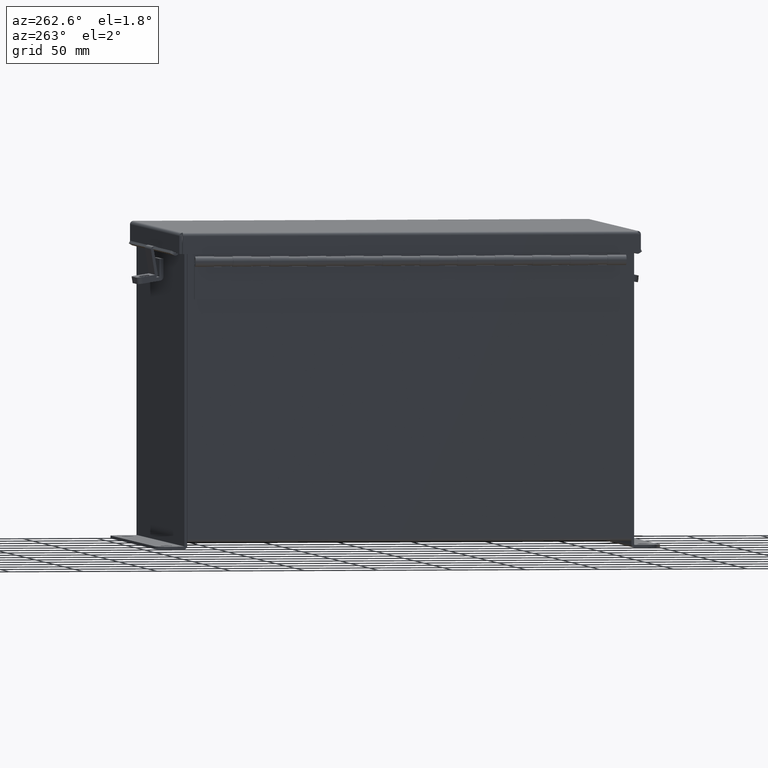
[diagram: clean part render]
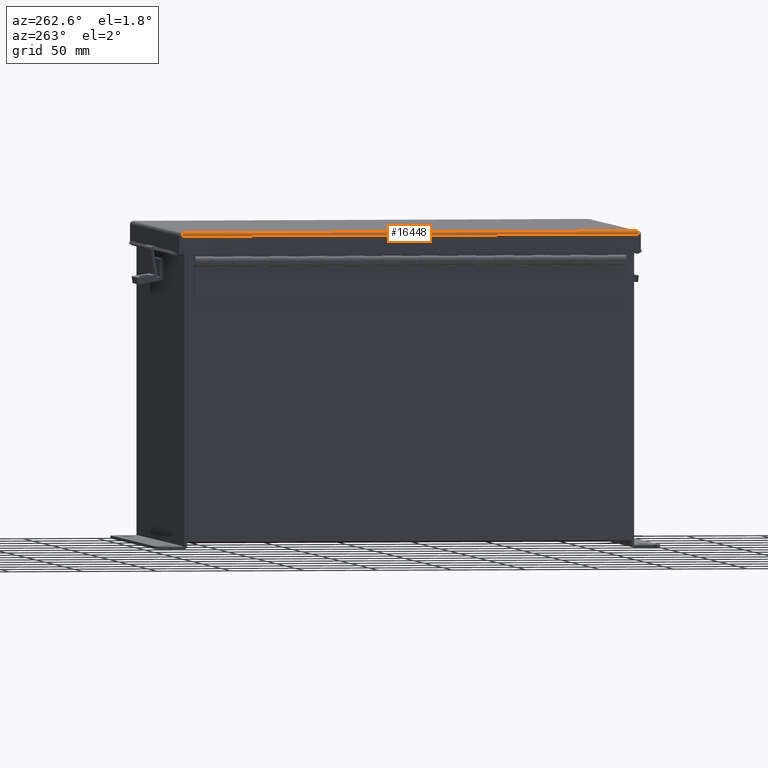
[diagram: same view with one face highlighted and labeled with its STEP entity id]
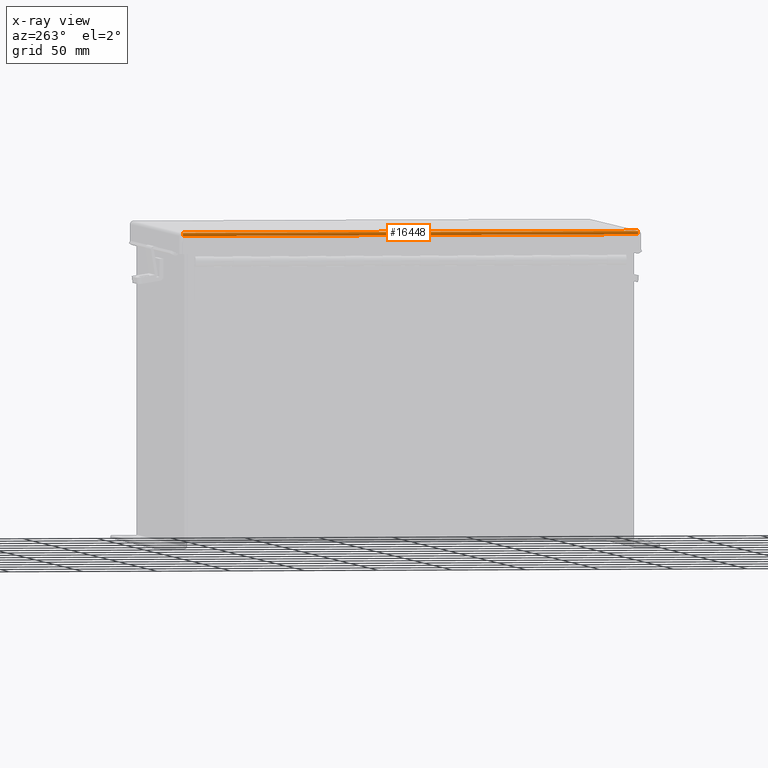
[diagram: x-ray of the same camera — body ghosted, the highlighted face saturated]
A machine part, auxiliary view. The second image highlights one B-rep face of the part: STEP entity #16448.
The next image is the same camera in x-ray: the body ghosted, the highlighted face saturated — about 0% of this face is hidden behind the body in this view.
In plain terms, the highlighted cylindrical surface (edge-blend (fillet) strip) has radius 2.2276 mm, axis along (0, 1, 0).
Its self-contained STEP definition (entity closure, byte-faithful):
#115 = CARTESIAN_POINT ( 'NONE',  ( 5.156250000000000900, 6.073984854505792600, 0.001520096845007091700 ) ) ;
#478 = ORIENTED_EDGE ( 'NONE', *, *, #7489, .F. ) ;
#629 = CARTESIAN_POINT ( 'NONE',  ( 5.156250000000000900, 6.074478932188137400, 0.01299999999999978100 ) ) ;
#1414 = AXIS2_PLACEMENT_3D ( 'NONE', #12725, #14011, #1733 ) ;
#1512 = CARTESIAN_POINT ( 'NONE',  ( 5.156250000000000900, 6.074478932188137400, 0.01299999999999978100 ) ) ;
#1600 = CARTESIAN_POINT ( 'NONE',  ( 5.068550000000001000, 6.074478932188137400, -0.07469999999999993300 ) ) ;
#1733 = DIRECTION ( 'NONE',  ( 1.000000000000000000, 0.0000000000000000000, -4.477801015840783100E-015 ) ) ;
#2058 = EDGE_CURVE ( 'NONE', #16211, #16643, #3827, .T. ) ;
#2518 = CARTESIAN_POINT ( 'NONE',  ( 5.068550000000001000, 6.068550000000001000, -0.07469999999999993300 ) ) ;
#2894 = CARTESIAN_POINT ( 'NONE',  ( 5.138680782078322000, 6.072008543776414400, -0.04089574734180010500 ) ) ;
#3136 = CARTESIAN_POINT ( 'NONE',  ( 5.156250000000000900, -6.156249999999998200, 0.01299999999999978100 ) ) ;
#3146 = CARTESIAN_POINT ( 'NONE',  ( 5.112717384578526300, -6.070526310729377400, -0.06363106625866835100 ) ) ;
#3827 = LINE ( 'NONE', #1600, #17515 ) ;
#4268 = CARTESIAN_POINT ( 'NONE',  ( 5.112717384578529900, 6.070526310729380100, -0.06363106625866837800 ) ) ;
#4521 = DIRECTION ( 'NONE',  ( -0.0000000000000000000, -1.000000000000000000, -0.0000000000000000000 ) ) ;
#4526 = CARTESIAN_POINT ( 'NONE',  ( 5.138680782078323800, -6.072008543776409100, -0.04089574734180011200 ) ) ;
#5640 = CARTESIAN_POINT ( 'NONE',  ( 5.080029903154994000, 6.069044077682346700, -0.07469999999999994700 ) ) ;
#5875 = CARTESIAN_POINT ( 'NONE',  ( 5.153967403743813200, -6.073490776823447800, -0.009955289458309054700 ) ) ;
#5988 = B_SPLINE_CURVE_WITH_KNOTS ( 'NONE', 3,
 ( #7215, #15378, #11338, #3146, #12705, #4526, #14055, #5875, #15427, #7285 ),
 .UNSPECIFIED., .F., .F.,
 ( 4, 2, 2, 2, 4 ),
 ( 0.0000000000000000000, 0.2500000000000000000, 0.5000000000000000000, 0.7500000000000000000, 1.000000000000000000 ),
 .UNSPECIFIED. ) ;
#6176 = VECTOR ( 'NONE', #4521, 39.37007874015748100 ) ;
#6196 = B_SPLINE_CURVE_WITH_KNOTS ( 'NONE', 3,
 ( #1512, #115, #8339, #11089, #2894, #12449, #4268, #13827, #5640, #15184 ),
 .UNSPECIFIED., .F., .F.,
 ( 4, 2, 2, 2, 4 ),
 ( 0.0000000000000000000, 0.2500000000000000000, 0.5000000000000000000, 0.7500000000000000000, 1.000000000000000000 ),
 .UNSPECIFIED. ) ;
#7215 = CARTESIAN_POINT ( 'NONE',  ( 5.068550000000001000, -6.068549999999999200, -0.07469999999999993300 ) ) ;
#7285 = CARTESIAN_POINT ( 'NONE',  ( 5.156250000000000900, -6.074478932188134700, 0.01299999999999977400 ) ) ;
#7400 = EDGE_CURVE ( 'NONE', #13811, #16211, #6196, .T. ) ;
#7489 = EDGE_CURVE ( 'NONE', #16643, #16833, #5988, .T. ) ;
#8339 = CARTESIAN_POINT ( 'NONE',  ( 5.153967403743813200, 6.073490776823447800, -0.009955289458309056500 ) ) ;
#9683 = ORIENTED_EDGE ( 'NONE', *, *, #2058, .F. ) ;
#10237 = LINE ( 'NONE', #3136, #6176 ) ;
#10348 = ORIENTED_EDGE ( 'NONE', *, *, #12529, .T. ) ;
#10762 = ORIENTED_EDGE ( 'NONE', *, *, #7400, .F. ) ;
#11089 = CARTESIAN_POINT ( 'NONE',  ( 5.145181066258667000, 6.072502621458759200, -0.03116738457852799900 ) ) ;
#11338 = CARTESIAN_POINT ( 'NONE',  ( 5.091505289458312200, -6.069538155364686100, -0.07241740374381121200 ) ) ;
#12449 = CARTESIAN_POINT ( 'NONE',  ( 5.122445747341801700, 6.071020388411723100, -0.05713078207832041800 ) ) ;
#12529 = EDGE_CURVE ( 'NONE', #13811, #16833, #10237, .T. ) ;
#12705 = CARTESIAN_POINT ( 'NONE',  ( 5.122445747341800800, -6.071020388411719500, -0.05713078207832041800 ) ) ;
#12725 = CARTESIAN_POINT ( 'NONE',  ( 5.068550000000001000, 6.074478932188137400, 0.01300000000000016400 ) ) ;
#13368 = CARTESIAN_POINT ( 'NONE',  ( 5.156250000000000900, -6.074478932188134700, 0.01299999999999977400 ) ) ;
#13811 = VERTEX_POINT ( 'NONE', #629 ) ;
#13827 = CARTESIAN_POINT ( 'NONE',  ( 5.091505289458310400, 6.069538155364692300, -0.07241740374381121200 ) ) ;
#13870 = DIRECTION ( 'NONE',  ( -0.0000000000000000000, -1.000000000000000000, -0.0000000000000000000 ) ) ;
#14011 = DIRECTION ( 'NONE',  ( 0.0000000000000000000, 1.000000000000000000, 0.0000000000000000000 ) ) ;
#14055 = CARTESIAN_POINT ( 'NONE',  ( 5.145181066258668800, -6.072502621458755600, -0.03116738457852800300 ) ) ;
#14359 = CARTESIAN_POINT ( 'NONE',  ( 5.068550000000001000, -6.068549999999999200, -0.07469999999999993300 ) ) ;
#15184 = CARTESIAN_POINT ( 'NONE',  ( 5.068550000000001000, 6.068550000000001000, -0.07469999999999993300 ) ) ;
#15378 = CARTESIAN_POINT ( 'NONE',  ( 5.080029903154993100, -6.069044077682343100, -0.07469999999999994700 ) ) ;
#15427 = CARTESIAN_POINT ( 'NONE',  ( 5.156250000000000900, -6.073984854505789100, 0.001520096845007091700 ) ) ;
#15735 = EDGE_LOOP ( 'NONE', ( #9683, #10762, #10348, #478 ) ) ;
#16028 = CYLINDRICAL_SURFACE ( 'NONE', #1414, 0.08770000000000026400 ) ;
#16211 = VERTEX_POINT ( 'NONE', #2518 ) ;
#16448 = ADVANCED_FACE ( 'NONE', ( #16452 ), #16028, .T. ) ;
#16452 = FACE_OUTER_BOUND ( 'NONE', #15735, .T. ) ;
#16643 = VERTEX_POINT ( 'NONE', #14359 ) ;
#16833 = VERTEX_POINT ( 'NONE', #13368 ) ;
#17515 = VECTOR ( 'NONE', #13870, 39.37007874015748100 ) ;